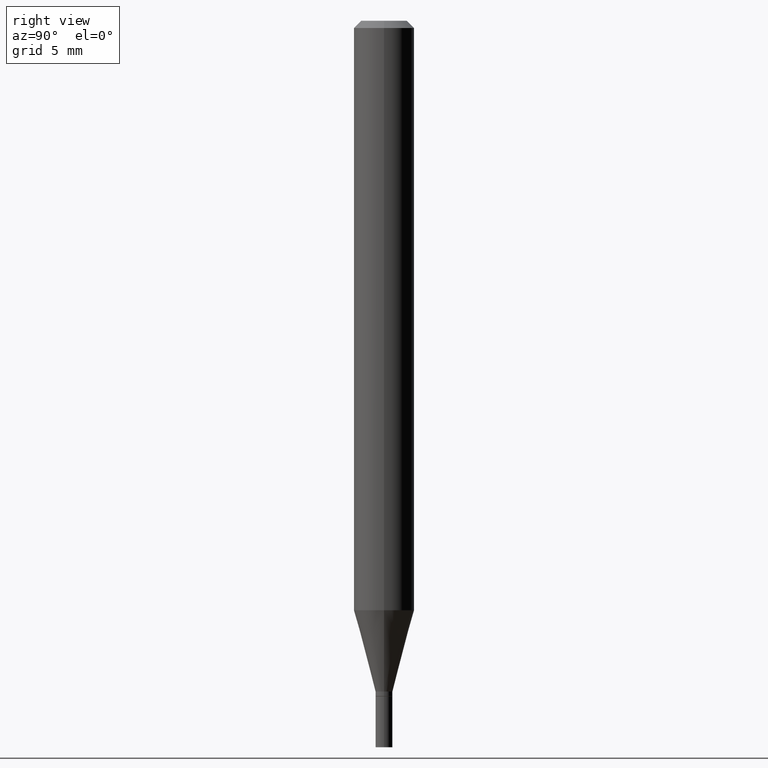
[diagram: clean part render]
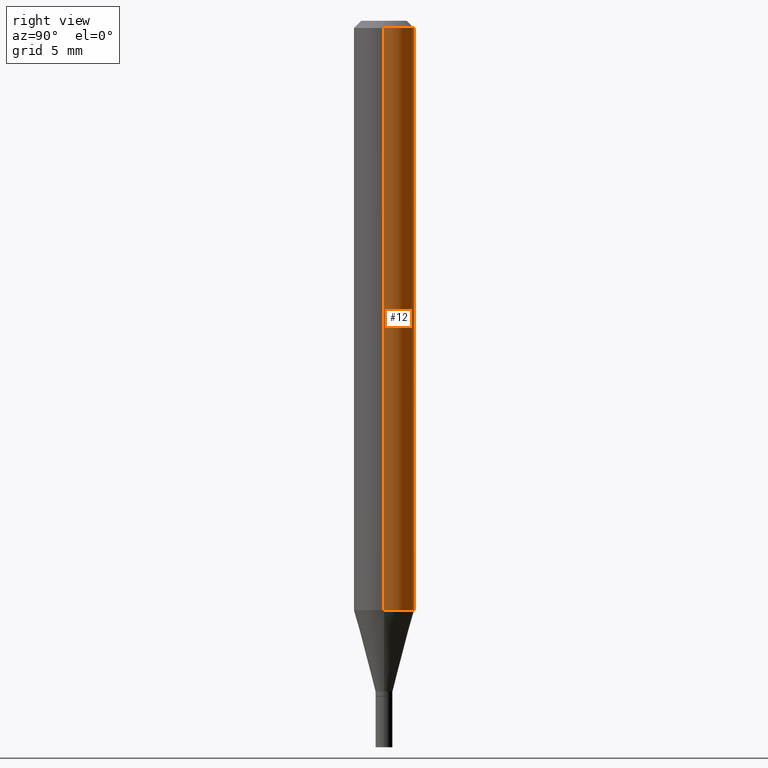
[diagram: same view with one face highlighted and labeled with its STEP entity id]
A machine part, right view. The second image highlights one B-rep face of the part: STEP entity #12.
In plain terms, the highlighted cylindrical surface (edge-blend (fillet) strip) has radius 1.5875 mm, axis along (-0, 0, 1).
Its self-contained STEP definition (entity closure, byte-faithful):
#12 = ADVANCED_FACE ( 'NONE', ( #302 ), #312, .T. ) ;
#17 = CARTESIAN_POINT ( 'NONE',  ( 0.06250000000000000000, -4.888073874380388472E-16, -0.01499999999999999944 ) ) ;
#19 = CARTESIAN_POINT ( 'NONE',  ( 2.976276674081067124E-29, -4.249334295536902658E-15, -1.217057713659400964 ) ) ;
#36 = AXIS2_PLACEMENT_3D ( 'NONE', #406, #363, #258 ) ;
#41 = EDGE_CURVE ( 'NONE', #201, #455, #75, .T. ) ;
#47 = VECTOR ( 'NONE', #61, 39.37007874015748143 ) ;
#61 = DIRECTION ( 'NONE',  ( -2.445468806185136877E-29, 3.491481338843145188E-15, 1.000000000000000000 ) ) ;
#67 = CARTESIAN_POINT ( 'NONE',  ( -0.06250000000000000000, 4.440892098500626162E-16, -3.074334431409316114E-30 ) ) ;
#75 = CIRCLE ( 'NONE', #36, 0.06250000000000000000 ) ;
#89 = AXIS2_PLACEMENT_3D ( 'NONE', #19, #190, #120 ) ;
#94 = VECTOR ( 'NONE', #440, 39.37007874015748143 ) ;
#120 = DIRECTION ( 'NONE',  ( 1.000000000000000000, -6.982962677686270655E-15, 0.000000000000000000 ) ) ;
#137 = ORIENTED_EDGE ( 'NONE', *, *, #424, .T. ) ;
#141 = CIRCLE ( 'NONE', #89, 0.06250000000000000000 ) ;
#151 = LINE ( 'NONE', #442, #94 ) ;
#168 = EDGE_CURVE ( 'NONE', #261, #201, #151, .T. ) ;
#172 = CARTESIAN_POINT ( 'NONE',  ( -0.06250000000000000000, -1.706764047959712450E-15, -0.01499999999999999944 ) ) ;
#190 = DIRECTION ( 'NONE',  ( -2.445468806185136597E-29, 3.491481338843145583E-15, 1.000000000000000000 ) ) ;
#201 = VERTEX_POINT ( 'NONE', #17 ) ;
#215 = ORIENTED_EDGE ( 'NONE', *, *, #168, .F. ) ;
#258 = DIRECTION ( 'NONE',  ( 1.000000000000000000, -6.982962677686266711E-15, 0.000000000000000000 ) ) ;
#261 = VERTEX_POINT ( 'NONE', #333 ) ;
#276 = ORIENTED_EDGE ( 'NONE', *, *, #277, .T. ) ;
#277 = EDGE_CURVE ( 'NONE', #261, #427, #141, .T. ) ;
#302 = FACE_OUTER_BOUND ( 'NONE', #329, .T. ) ;
#312 = CYLINDRICAL_SURFACE ( 'NONE', #347, 0.06250000000000000000 ) ;
#329 = EDGE_LOOP ( 'NONE', ( #276, #137, #461, #215 ) ) ;
#333 = CARTESIAN_POINT ( 'NONE',  ( 0.06249999999999999306, -4.685769462892295117E-15, -1.217057713659400964 ) ) ;
#343 = DIRECTION ( 'NONE',  ( -2.445468806185136597E-29, 3.491481338843145583E-15, 1.000000000000000000 ) ) ;
#347 = AXIS2_PLACEMENT_3D ( 'NONE', #453, #343, #421 ) ;
#363 = DIRECTION ( 'NONE',  ( -2.445468806185136597E-29, 3.491481338843145583E-15, 1.000000000000000000 ) ) ;
#406 = CARTESIAN_POINT ( 'NONE',  ( 3.668203209277705088E-31, -5.237222008264718399E-17, -0.01499999999999999944 ) ) ;
#418 = CARTESIAN_POINT ( 'NONE',  ( -0.06249999999999999306, -3.805245085686840042E-15, -1.217057713659400964 ) ) ;
#421 = DIRECTION ( 'NONE',  ( 1.000000000000000000, -6.982962677686266711E-15, 4.876176775795935793E-29 ) ) ;
#424 = EDGE_CURVE ( 'NONE', #427, #455, #462, .T. ) ;
#427 = VERTEX_POINT ( 'NONE', #418 ) ;
#440 = DIRECTION ( 'NONE',  ( -2.445468806185136877E-29, 3.491481338843145188E-15, 1.000000000000000000 ) ) ;
#442 = CARTESIAN_POINT ( 'NONE',  ( 0.06250000000000000000, -4.364351673553916694E-16, 3.047610484872459871E-30 ) ) ;
#453 = CARTESIAN_POINT ( 'NONE',  ( 0.000000000000000000, 0.000000000000000000, 0.000000000000000000 ) ) ;
#455 = VERTEX_POINT ( 'NONE', #172 ) ;
#461 = ORIENTED_EDGE ( 'NONE', *, *, #41, .F. ) ;
#462 = LINE ( 'NONE', #67, #47 ) ;